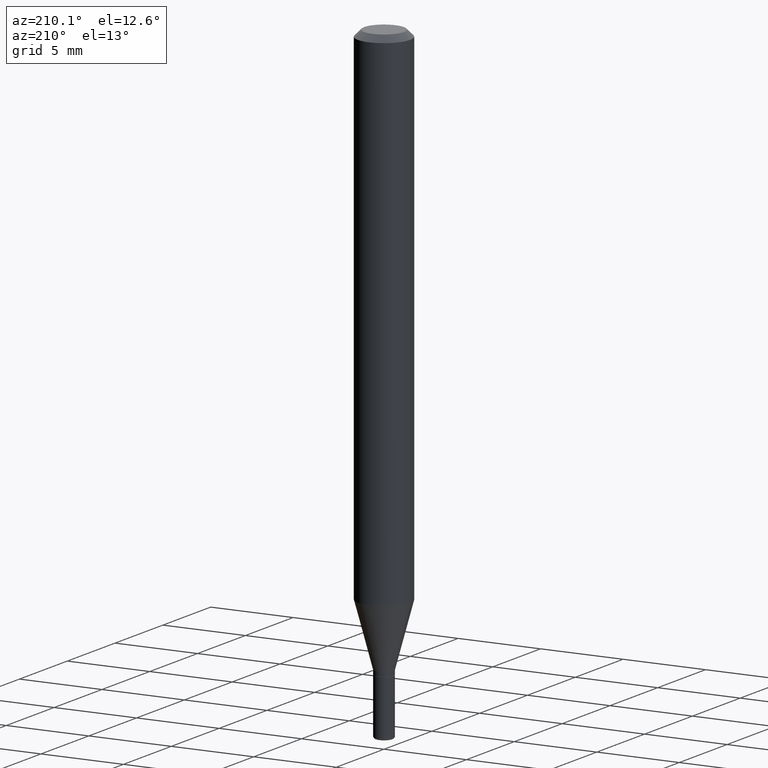
[diagram: clean part render]
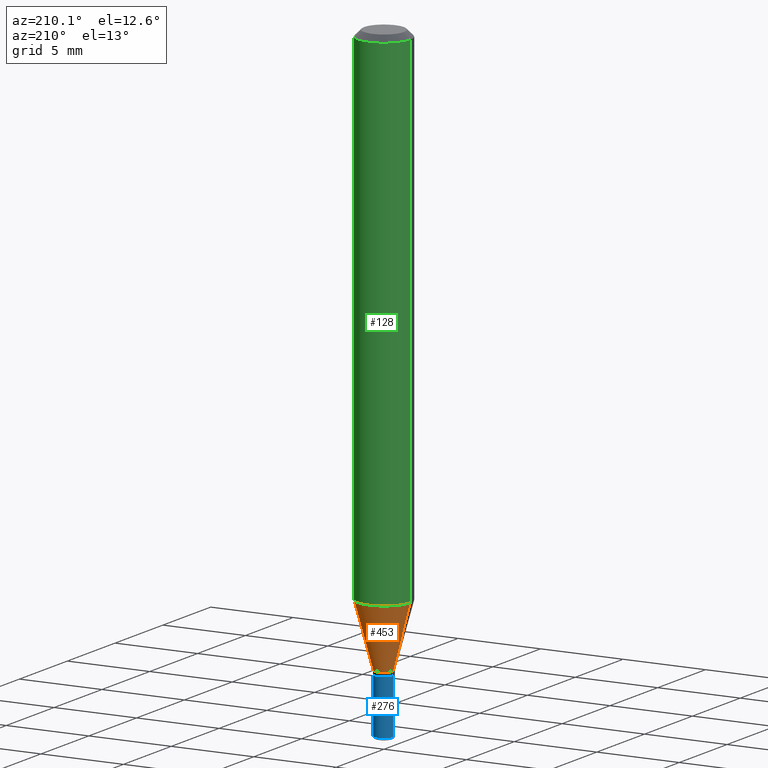
[diagram: same view with three faces highlighted in distinct colors, each labeled with its STEP entity id]
A machine part, auxiliary view with three faces highlighted in distinct colors.
Their STEP definitions:

[orange] entity #453 — the highlighted conical surface has half-angle 15 deg.
#16 = DIRECTION ( 'NONE',  ( 1.000000000000000000, -6.982962677686286432E-15, 0.000000000000000000 ) ) ;
#39 = DIRECTION ( 'NONE',  ( 0.2588190451025206840, 1.565188264969626504E-15, 0.9659258262890682012 ) ) ;
#91 = VERTEX_POINT ( 'NONE', #310 ) ;
#115 = ORIENTED_EDGE ( 'NONE', *, *, #143, .F. ) ;
#118 = VECTOR ( 'NONE', #39, 39.37007874015748854 ) ;
#126 = CARTESIAN_POINT ( 'NONE',  ( -0.02250000000000007896, -4.168368836429596353E-15, -1.355000000000000426 ) ) ;
#143 = EDGE_CURVE ( 'NONE', #91, #249, #435, .T. ) ;
#175 = CARTESIAN_POINT ( 'NONE',  ( 3.313610232380861411E-29, -4.730957214132463998E-15, -1.355000000000000426 ) ) ;
#208 = CIRCLE ( 'NONE', #486, 0.06250000000000000000 ) ;
#212 = DIRECTION ( 'NONE',  ( 1.000000000000000000, -6.982962677686270655E-15, 0.000000000000000000 ) ) ;
#217 = VECTOR ( 'NONE', #381, 39.37007874015748854 ) ;
#225 = EDGE_LOOP ( 'NONE', ( #315, #343, #429, #115 ) ) ;
#249 = VERTEX_POINT ( 'NONE', #324 ) ;
#255 = CARTESIAN_POINT ( 'NONE',  ( 2.948545679060552191E-29, -4.209741784122815192E-15, -1.205717967697245596 ) ) ;
#293 = EDGE_CURVE ( 'NONE', #249, #507, #208, .T. ) ;
#294 = FACE_OUTER_BOUND ( 'NONE', #225, .T. ) ;
#298 = DIRECTION ( 'NONE',  ( -2.445468806185136597E-29, 3.491481338843145583E-15, 1.000000000000000000 ) ) ;
#307 = CIRCLE ( 'NONE', #351, 0.02250000000000007896 ) ;
#310 = CARTESIAN_POINT ( 'NONE',  ( 0.02250000000000007896, -4.888073874380405630E-15, -1.355000000000000426 ) ) ;
#315 = ORIENTED_EDGE ( 'NONE', *, *, #347, .T. ) ;
#324 = CARTESIAN_POINT ( 'NONE',  ( 0.06250000000000000000, -4.646176951478207651E-15, -1.205717967697245596 ) ) ;
#338 = LINE ( 'NONE', #502, #217 ) ;
#343 = ORIENTED_EDGE ( 'NONE', *, *, #499, .T. ) ;
#347 = EDGE_CURVE ( 'NONE', #91, #422, #307, .T. ) ;
#351 = AXIS2_PLACEMENT_3D ( 'NONE', #175, #370, #16 ) ;
#370 = DIRECTION ( 'NONE',  ( -2.445468806185136597E-29, 3.491481338843145583E-15, 1.000000000000000000 ) ) ;
#381 = DIRECTION ( 'NONE',  ( -0.2588190451025206840, 5.211531920934545520E-15, 0.9659258262890682012 ) ) ;
#412 = DIRECTION ( 'NONE',  ( -2.445468806185136597E-29, 3.491481338843145583E-15, 1.000000000000000000 ) ) ;
#422 = VERTEX_POINT ( 'NONE', #126 ) ;
#429 = ORIENTED_EDGE ( 'NONE', *, *, #293, .F. ) ;
#435 = LINE ( 'NONE', #443, #118 ) ;
#443 = CARTESIAN_POINT ( 'NONE',  ( 0.02250000000000007896, -4.888073874380405630E-15, -1.355000000000000426 ) ) ;
#444 = CARTESIAN_POINT ( 'NONE',  ( 3.313610232380861411E-29, -4.730957214132463998E-15, -1.355000000000000426 ) ) ;
#449 = DIRECTION ( 'NONE',  ( 1.000000000000000000, -6.982962677686286432E-15, 0.000000000000000000 ) ) ;
#453 = ADVANCED_FACE ( 'NONE', ( #294 ), #456, .T. ) ;
#456 = CONICAL_SURFACE ( 'NONE', #511, 0.02250000000000007896, 0.2617993877991494078 ) ;
#486 = AXIS2_PLACEMENT_3D ( 'NONE', #255, #412, #212 ) ;
#498 = CARTESIAN_POINT ( 'NONE',  ( -0.06250000000000000000, -3.765652574272752576E-15, -1.205717967697245596 ) ) ;
#499 = EDGE_CURVE ( 'NONE', #422, #507, #338, .T. ) ;
#502 = CARTESIAN_POINT ( 'NONE',  ( -0.02250000000000007896, -4.571085098586440920E-15, -1.355000000000000426 ) ) ;
#507 = VERTEX_POINT ( 'NONE', #498 ) ;
#511 = AXIS2_PLACEMENT_3D ( 'NONE', #444, #298, #449 ) ;

[blue] entity #276 — the highlighted cylindrical surface (edge-blend (fillet) strip) has radius 0.5715 mm, axis along (-0, 0, 1).
#1 = CARTESIAN_POINT ( 'NONE',  ( 0.02250000000000008937, -1.571166602479416074E-16, 1.097139774554090038E-30 ) ) ;
#5 = EDGE_CURVE ( 'NONE', #264, #43, #458, .T. ) ;
#6 = CARTESIAN_POINT ( 'NONE',  ( -0.02250000000000008937, 1.598721155460231769E-16, -1.106760395307358334E-30 ) ) ;
#9 = AXIS2_PLACEMENT_3D ( 'NONE', #481, #484, #80 ) ;
#40 = EDGE_CURVE ( 'NONE', #313, #43, #401, .T. ) ;
#42 = CARTESIAN_POINT ( 'NONE',  ( -0.02249999999999999917, -4.832946198999675921E-15, -1.364999999999999991 ) ) ;
#43 = VERTEX_POINT ( 'NONE', #42 ) ;
#78 = LINE ( 'NONE', #1, #305 ) ;
#80 = DIRECTION ( 'NONE',  ( 1.000000000000000000, -6.982962677686255667E-15, 0.000000000000000000 ) ) ;
#85 = FACE_OUTER_BOUND ( 'NONE', #386, .T. ) ;
#95 = DIRECTION ( 'NONE',  ( -2.445468806185136597E-29, 3.491481338843145583E-15, 1.000000000000000000 ) ) ;
#117 = DIRECTION ( 'NONE',  ( -2.445468806185136877E-29, 3.491481338843145188E-15, 1.000000000000000000 ) ) ;
#132 = CARTESIAN_POINT ( 'NONE',  ( 0.000000000000000000, 0.000000000000000000, 0.000000000000000000 ) ) ;
#134 = DIRECTION ( 'NONE',  ( -2.445468806185136597E-29, 3.491481338843145583E-15, 1.000000000000000000 ) ) ;
#172 = VERTEX_POINT ( 'NONE', #515 ) ;
#190 = CIRCLE ( 'NONE', #9, 0.02250000000000017958 ) ;
#193 = EDGE_CURVE ( 'NONE', #172, #264, #78, .T. ) ;
#204 = CARTESIAN_POINT ( 'NONE',  ( 0.02249999999999999917, -4.922988687768834913E-15, -1.364999999999999991 ) ) ;
#219 = AXIS2_PLACEMENT_3D ( 'NONE', #379, #134, #246 ) ;
#246 = DIRECTION ( 'NONE',  ( 1.000000000000000000, -6.982962677686269077E-15, 0.000000000000000000 ) ) ;
#252 = EDGE_CURVE ( 'NONE', #172, #313, #190, .T. ) ;
#264 = VERTEX_POINT ( 'NONE', #204 ) ;
#265 = DIRECTION ( 'NONE',  ( 1.000000000000000000, -6.982962677686265922E-15, 4.876176775795936353E-29 ) ) ;
#276 = ADVANCED_FACE ( 'NONE', ( #85 ), #446, .T. ) ;
#292 = DIRECTION ( 'NONE',  ( -2.445468806185136877E-29, 3.491481338843145188E-15, 1.000000000000000000 ) ) ;
#303 = ORIENTED_EDGE ( 'NONE', *, *, #193, .F. ) ;
#305 = VECTOR ( 'NONE', #117, 39.37007874015748143 ) ;
#313 = VERTEX_POINT ( 'NONE', #404 ) ;
#314 = AXIS2_PLACEMENT_3D ( 'NONE', #132, #95, #265 ) ;
#379 = CARTESIAN_POINT ( 'NONE',  ( 3.338064920442711836E-29, -4.765872027520893280E-15, -1.364999999999999991 ) ) ;
#386 = EDGE_LOOP ( 'NONE', ( #420, #413, #433, #303 ) ) ;
#401 = LINE ( 'NONE', #6, #450 ) ;
#404 = CARTESIAN_POINT ( 'NONE',  ( -0.02250000000000017958, -4.832946198999673555E-15, -1.495000000000000329 ) ) ;
#413 = ORIENTED_EDGE ( 'NONE', *, *, #40, .T. ) ;
#420 = ORIENTED_EDGE ( 'NONE', *, *, #252, .T. ) ;
#433 = ORIENTED_EDGE ( 'NONE', *, *, #5, .F. ) ;
#446 = CYLINDRICAL_SURFACE ( 'NONE', #314, 0.02250000000000008937 ) ;
#450 = VECTOR ( 'NONE', #292, 39.37007874015748143 ) ;
#458 = CIRCLE ( 'NONE', #219, 0.02249999999999999917 ) ;
#481 = CARTESIAN_POINT ( 'NONE',  ( 3.655975865246779683E-29, -5.219764601570503930E-15, -1.495000000000000329 ) ) ;
#484 = DIRECTION ( 'NONE',  ( -2.445468806185136597E-29, 3.491481338843145583E-15, 1.000000000000000000 ) ) ;
#515 = CARTESIAN_POINT ( 'NONE',  ( 0.02250000000000017958, -5.376881261818446351E-15, -1.495000000000000329 ) ) ;

[green] entity #128 — the highlighted cylindrical surface (edge-blend (fillet) strip) has radius 1.5875 mm, axis along (-0, 0, 1).
#38 = AXIS2_PLACEMENT_3D ( 'NONE', #440, #437, #394 ) ;
#58 = DIRECTION ( 'NONE',  ( -2.445468806185136877E-29, 3.491481338843145188E-15, 1.000000000000000000 ) ) ;
#59 = ORIENTED_EDGE ( 'NONE', *, *, #367, .F. ) ;
#68 = ORIENTED_EDGE ( 'NONE', *, *, #74, .T. ) ;
#70 = VECTOR ( 'NONE', #169, 39.37007874015748143 ) ;
#74 = EDGE_CURVE ( 'NONE', #507, #464, #415, .T. ) ;
#90 = CARTESIAN_POINT ( 'NONE',  ( -0.06250000000000000000, -1.686967792252668322E-15, -0.01499999999999970281 ) ) ;
#128 = ADVANCED_FACE ( 'NONE', ( #441 ), #321, .T. ) ;
#133 = CARTESIAN_POINT ( 'NONE',  ( 0.06250000000000000000, -4.364351673553916694E-16, 3.047610484872459871E-30 ) ) ;
#168 = CARTESIAN_POINT ( 'NONE',  ( -0.06250000000000000000, 4.440892098500626162E-16, -3.074334431409316114E-30 ) ) ;
#169 = DIRECTION ( 'NONE',  ( -2.445468806185136877E-29, 3.491481338843145188E-15, 1.000000000000000000 ) ) ;
#180 = ORIENTED_EDGE ( 'NONE', *, *, #293, .T. ) ;
#186 = VERTEX_POINT ( 'NONE', #402 ) ;
#208 = CIRCLE ( 'NONE', #486, 0.06250000000000000000 ) ;
#212 = DIRECTION ( 'NONE',  ( 1.000000000000000000, -6.982962677686270655E-15, 0.000000000000000000 ) ) ;
#247 = CIRCLE ( 'NONE', #248, 0.06250000000000000000 ) ;
#248 = AXIS2_PLACEMENT_3D ( 'NONE', #490, #259, #408 ) ;
#249 = VERTEX_POINT ( 'NONE', #324 ) ;
#255 = CARTESIAN_POINT ( 'NONE',  ( 2.948545679060552191E-29, -4.209741784122815192E-15, -1.205717967697245596 ) ) ;
#259 = DIRECTION ( 'NONE',  ( -2.445468806185136597E-29, 3.491481338843145583E-15, 1.000000000000000000 ) ) ;
#261 = EDGE_LOOP ( 'NONE', ( #180, #68, #390, #59 ) ) ;
#293 = EDGE_CURVE ( 'NONE', #249, #507, #208, .T. ) ;
#321 = CYLINDRICAL_SURFACE ( 'NONE', #38, 0.06250000000000000000 ) ;
#324 = CARTESIAN_POINT ( 'NONE',  ( 0.06250000000000000000, -4.646176951478207651E-15, -1.205717967697245596 ) ) ;
#367 = EDGE_CURVE ( 'NONE', #249, #186, #410, .T. ) ;
#368 = VECTOR ( 'NONE', #58, 39.37007874015748143 ) ;
#390 = ORIENTED_EDGE ( 'NONE', *, *, #431, .F. ) ;
#394 = DIRECTION ( 'NONE',  ( 1.000000000000000000, -6.982962677686266711E-15, 4.876176775795935793E-29 ) ) ;
#402 = CARTESIAN_POINT ( 'NONE',  ( 0.06250000000000000000, -4.888073874380378612E-16, -0.01499999999999970281 ) ) ;
#408 = DIRECTION ( 'NONE',  ( 1.000000000000000000, -6.982962677686266711E-15, 0.000000000000000000 ) ) ;
#410 = LINE ( 'NONE', #133, #70 ) ;
#412 = DIRECTION ( 'NONE',  ( -2.445468806185136597E-29, 3.491481338843145583E-15, 1.000000000000000000 ) ) ;
#415 = LINE ( 'NONE', #168, #368 ) ;
#431 = EDGE_CURVE ( 'NONE', #186, #464, #247, .T. ) ;
#437 = DIRECTION ( 'NONE',  ( -2.445468806185136597E-29, 3.491481338843145583E-15, 1.000000000000000000 ) ) ;
#440 = CARTESIAN_POINT ( 'NONE',  ( 0.000000000000000000, 0.000000000000000000, 0.000000000000000000 ) ) ;
#441 = FACE_OUTER_BOUND ( 'NONE', #261, .T. ) ;
#464 = VERTEX_POINT ( 'NONE', #90 ) ;
#486 = AXIS2_PLACEMENT_3D ( 'NONE', #255, #412, #212 ) ;
#490 = CARTESIAN_POINT ( 'NONE',  ( 3.668203209277632395E-31, -5.237222008264614861E-17, -0.01499999999999970281 ) ) ;
#498 = CARTESIAN_POINT ( 'NONE',  ( -0.06250000000000000000, -3.765652574272752576E-15, -1.205717967697245596 ) ) ;
#507 = VERTEX_POINT ( 'NONE', #498 ) ;